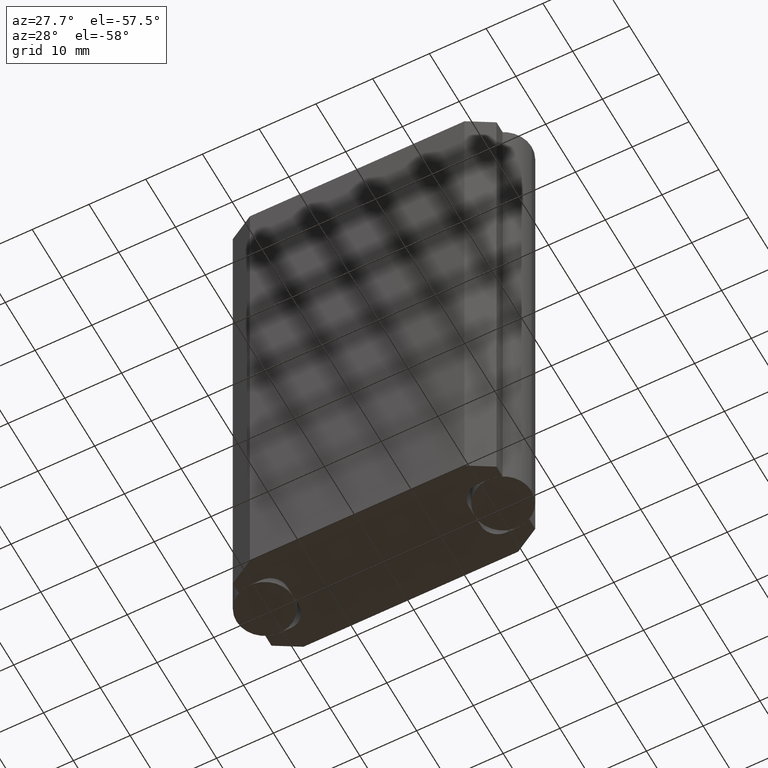
[diagram: clean part render]
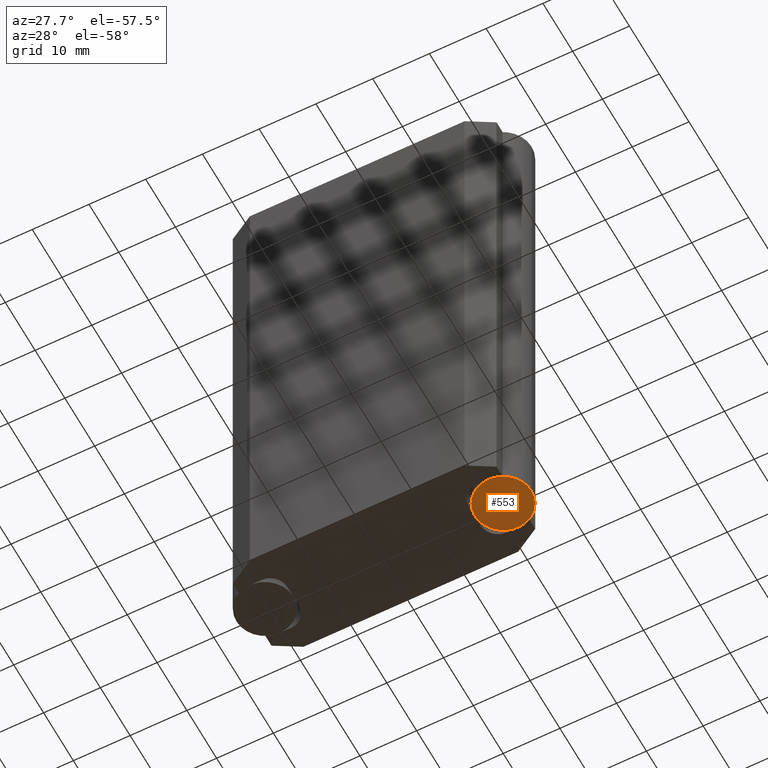
[diagram: same view with one face highlighted and labeled with its STEP entity id]
A machine part, auxiliary view. The second image highlights one B-rep face of the part: STEP entity #553.
In plain terms, the highlighted planar face has unit normal (0, 0, 1).
Its self-contained STEP definition (entity closure, byte-faithful):
#68=FACE_OUTER_BOUND('',#97,.T.);
#97=EDGE_LOOP('',(#504));
#229=CIRCLE('',#665,5.);
#279=VERTEX_POINT('',#986);
#354=EDGE_CURVE('',#279,#279,#229,.T.);
#504=ORIENTED_EDGE('',*,*,#354,.T.);
#524=PLANE('',#667);
#553=ADVANCED_FACE('',(#68),#524,.F.);
#665=AXIS2_PLACEMENT_3D('',#988,#822,#823);
#667=AXIS2_PLACEMENT_3D('',#990,#826,#827);
#822=DIRECTION('center_axis',(0.,0.,-1.));
#823=DIRECTION('ref_axis',(-1.,0.,0.));
#826=DIRECTION('center_axis',(0.,0.,1.));
#827=DIRECTION('ref_axis',(1.,0.,0.));
#986=CARTESIAN_POINT('',(5.,6.12323399573677E-16,0.));
#988=CARTESIAN_POINT('Origin',(0.,0.,0.));
#990=CARTESIAN_POINT('Origin',(-2.36064120735332E-16,9.25185853854297E-17,
0.));